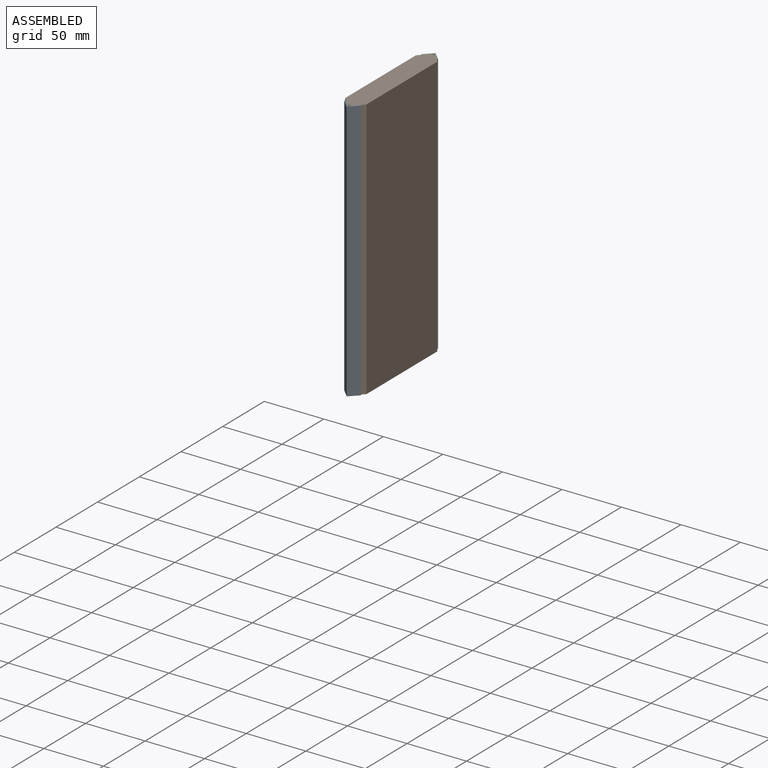
[diagram: assembled view]
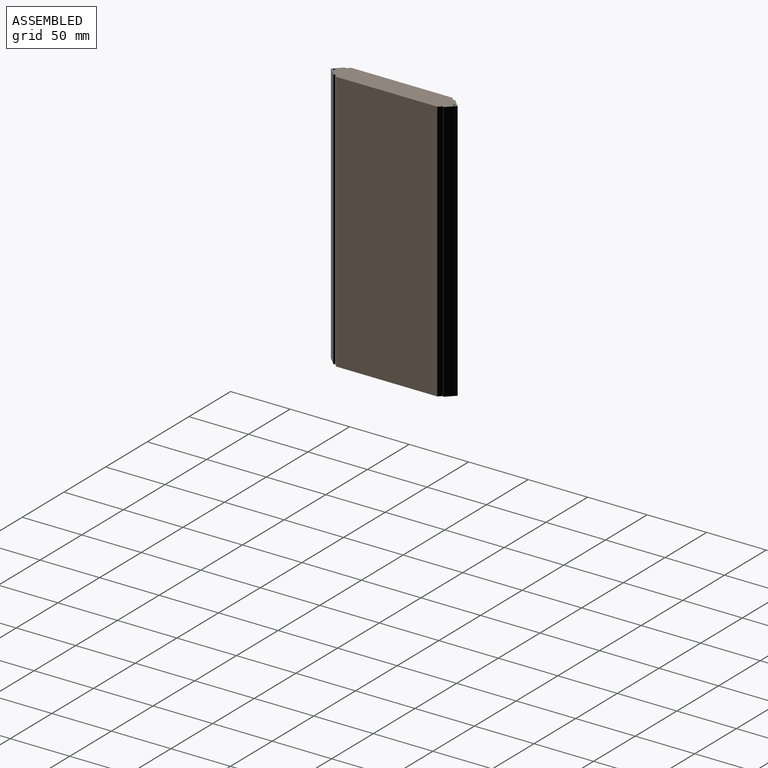
[diagram: assembled view, second angle]
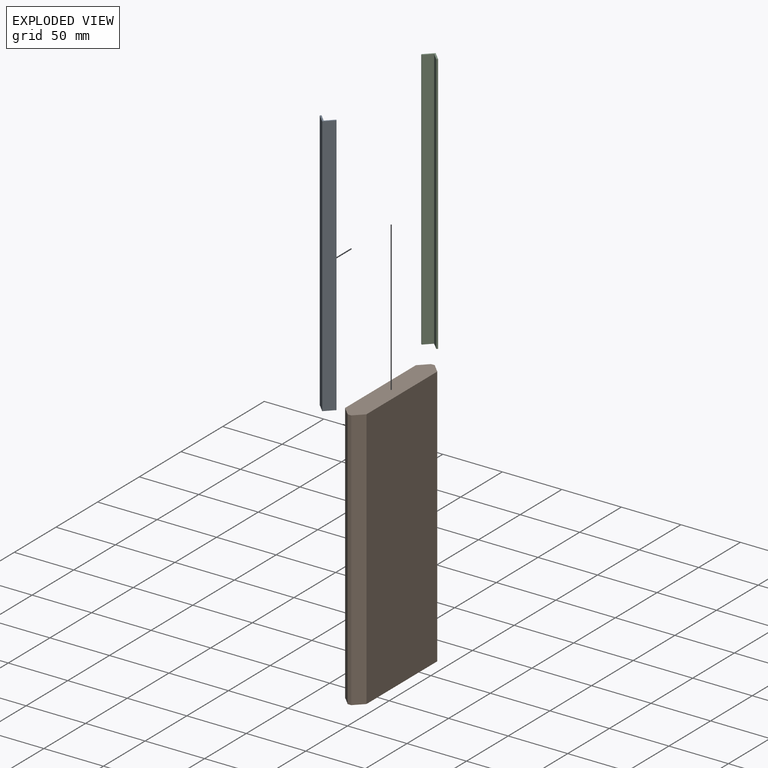
[diagram: exploded view]
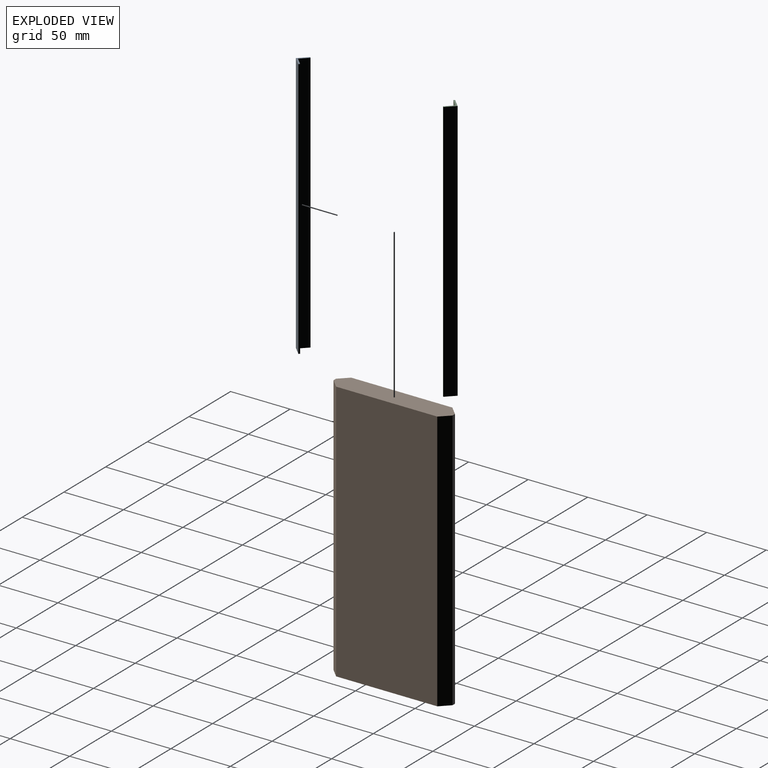
[diagram: exploded view, second angle]
ASSEMBLY  parts=3 mates=6
PART A: 8 faces, bbox 14.1x220x8 mm
  f0: plane 220x0.88mm, normal (-0.71,0,-0.71), area 275mm2, adj f1,f5,f6,f7
  f1: plane 220x6.19mm, normal (0.71,0,-0.71), area 1925mm2, adj f0,f2,f6,f7
  f2: plane 220x6.19mm, normal (-0.71,0,-0.71), area 1925mm2, adj f1,f3,f6,f7
  f3: plane 220x0.88mm, normal (0.71,0,-0.71), area 275mm2, adj f2,f4,f6,f7
  f4: plane 220x7.07mm, normal (0.71,0,0.71), area 2200mm2, adj f3,f5,f6,f7
  f5: plane 220x7.07mm, normal (-0.71,0,0.71), area 2200mm2, adj f0,f4,f6,f7
  f6: plane 14.14x7.96mm, normal (0,-1,0), area 23.4mm2, adj f0,f1,f2,f3,f4,f5
  f7: plane 14.14x7.96mm, normal (0,1,0), area 23.4mm2, adj f0,f1,f2,f3,f4,f5
PART B: 10 faces, bbox 18x220x100 mm
  f0: plane 220x85mm, normal (-1,0,0), area 18700mm2, adj f1,f7,f8,f9
  f1: plane 220x7.53mm, normal (-0.7,0,-0.71), area 2333.5mm2, adj f0,f2,f8,f9
  f2: plane 220x3mm, normal (0,0,-1), area 660mm2, adj f1,f3,f8,f9
  f3: plane 220x7.53mm, normal (0.71,0,-0.7), area 2333.5mm2, adj f2,f4,f8,f9
  f4: plane 220x85mm, normal (1,0,0), area 18700mm2, adj f3,f5,f8,f9
  f5: plane 220x7.53mm, normal (0.7,0,0.71), area 2333.5mm2, adj f4,f6,f8,f9
  f6: plane 220x3mm, normal (0,0,1), area 660mm2, adj f5,f7,f8,f9
  f7: plane 220x7.53mm, normal (-0.71,0,0.7), area 2333.5mm2, adj f0,f6,f8,f9
  f8: plane 100x18mm, normal (0,-1,0), area 1687.5mm2, adj f0,f1,f2,f3,f4,f5,f6,f7
  f9: plane 100x18mm, normal (0,1,0), area 1687.5mm2, adj f0,f1,f2,f3,f4,f5,f6,f7
PART C: same geometry as A
PLACE A rot(axis=(1,0,0),90deg) t=(-20.77,-13.88,90.08)mm
PLACE B rot(axis=(1,0,0),90deg) t=(-64.22,-11.46,90.08)mm fixed
PLACE C rot(axis=(-1,0,0),90deg) t=(-21.18,-41.06,-129.92)mm
MATE planar C.f1 <-> B.f1  axis (0.7,-0.71,0) through (-67.24,21.12,-19.92)mm
MATE planar C.f2 <-> B.f3  axis (-0.71,-0.7,0) through (-61.05,21.09,-19.92)mm
MATE planar A.f2 <-> B.f5  axis (-0.7,0.71,0) through (-61.11,-75.72,-19.92)mm
MATE planar A.f1 <-> B.f7  axis (0.71,0.7,0) through (-67.3,-75.7,-19.92)mm
MATE planar A.f7 <-> B.f9  axis (0,0,1) through (-64.21,-76.39,90.08)mm
MATE planar C.f6 <-> B.f9  axis (0,0,1) through (-64.15,21.78,90.08)mm
